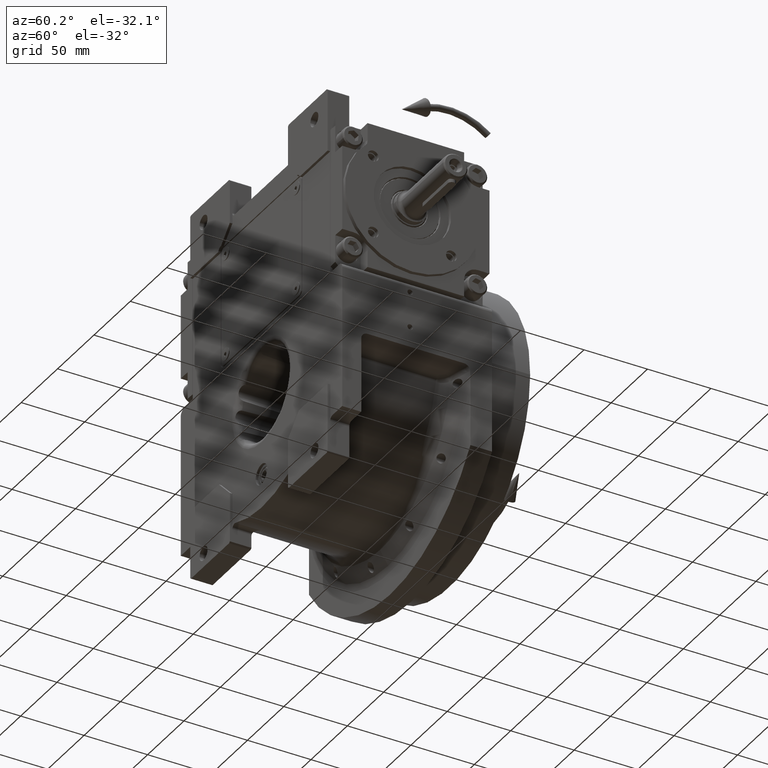
[diagram: clean part render]
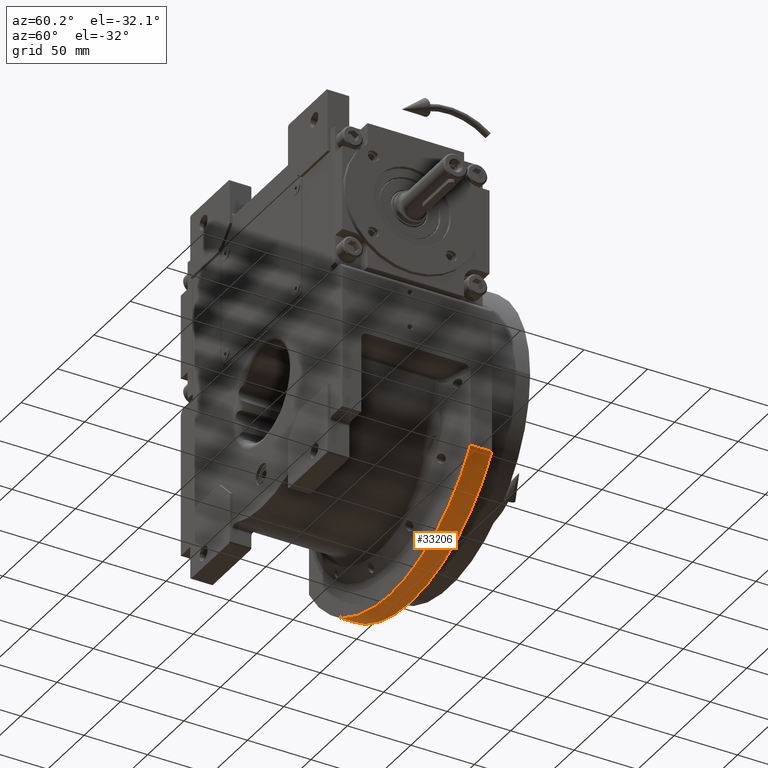
[diagram: same view with one face highlighted and labeled with its STEP entity id]
A machine part, auxiliary view. The second image highlights one B-rep face of the part: STEP entity #33206.
In plain terms, the highlighted cylindrical surface (partial cylindrical patch) has radius 132 mm, axis along (0, -1, 0).
Its self-contained STEP definition (entity closure, byte-faithful):
#9215 = CARTESIAN_POINT ( 'NONE',  ( -4.517455316885850268E-28, -53.50000000000000000, 0.000000000000000000 ) ) ;
#14266 = CIRCLE ( 'NONE', #15382, 131.9999999999999716 ) ;
#15077 = CARTESIAN_POINT ( 'NONE',  ( 111.0000000000000000, 47.50000000000000000, -71.43528539874399996 ) ) ;
#15132 = VERTEX_POINT ( 'NONE', #45926 ) ;
#15382 = AXIS2_PLACEMENT_3D ( 'NONE', #39515, #28255, #33889 ) ;
#21213 = ORIENTED_EDGE ( 'NONE', *, *, #28423, .F. ) ;
#23290 = EDGE_CURVE ( 'NONE', #62093, #15132, #54580, .T. ) ;
#24276 = EDGE_CURVE ( 'NONE', #51995, #61079, #14266, .T. ) ;
#28255 = DIRECTION ( 'NONE',  ( 0.000000000000000000, 1.000000000000000000, 0.000000000000000000 ) ) ;
#28423 = EDGE_CURVE ( 'NONE', #51995, #62093, #50982, .T. ) ;
#30988 = VECTOR ( 'NONE', #40893, 1000.000000000000000 ) ;
#33206 = ADVANCED_FACE ( 'NONE', ( #68952 ), #41906, .T. ) ;
#33889 = DIRECTION ( 'NONE',  ( 0.8409090909090902732, 0.000000000000000000, -0.5411764045359401809 ) ) ;
#39515 = CARTESIAN_POINT ( 'NONE',  ( 0.000000000000000000, 47.50000000000000000, 4.263256414560599853E-14 ) ) ;
#40623 = CARTESIAN_POINT ( 'NONE',  ( 111.0000000000000000, 47.50000000000000000, -71.43528539874399996 ) ) ;
#40893 = DIRECTION ( 'NONE',  ( 0.000000000000000000, 1.000000000000000000, 0.000000000000000000 ) ) ;
#41467 = DIRECTION ( 'NONE',  ( 0.000000000000000000, 1.000000000000000000, 8.359326303060000099E-16 ) ) ;
#41906 = CYLINDRICAL_SURFACE ( 'NONE', #68922, 132.0000000000000000 ) ;
#43915 = CARTESIAN_POINT ( 'NONE',  ( 7.105427357600998703E-15, 64.50000000000000000, 0.000000000000000000 ) ) ;
#44606 = DIRECTION ( 'NONE',  ( 0.8409090909090906063, 0.000000000000000000, -0.5411764045359397368 ) ) ;
#44929 = ORIENTED_EDGE ( 'NONE', *, *, #23290, .F. ) ;
#45926 = CARTESIAN_POINT ( 'NONE',  ( -111.0000000000000000, 64.50000000000000000, -71.43528539874399996 ) ) ;
#46770 = AXIS2_PLACEMENT_3D ( 'NONE', #43915, #60411, #44606 ) ;
#47901 = DIRECTION ( 'NONE',  ( 0.000000000000000000, -1.000000000000000000, 0.000000000000000000 ) ) ;
#50836 = CARTESIAN_POINT ( 'NONE',  ( 111.0000000000000000, 64.50000000000000000, -71.43528539874399996 ) ) ;
#50982 = LINE ( 'NONE', #15077, #51572 ) ;
#51572 = VECTOR ( 'NONE', #41467, 1000.000000000000000 ) ;
#51995 = VERTEX_POINT ( 'NONE', #40623 ) ;
#53580 = CARTESIAN_POINT ( 'NONE',  ( -111.0000000000000000, 47.50000000000000000, -71.43528539874399996 ) ) ;
#54580 = CIRCLE ( 'NONE', #46770, 132.0000000000000853 ) ;
#57498 = EDGE_CURVE ( 'NONE', #61079, #15132, #66548, .T. ) ;
#59418 = EDGE_LOOP ( 'NONE', ( #68696, #44929, #21213, #65398 ) ) ;
#60411 = DIRECTION ( 'NONE',  ( 0.000000000000000000, 1.000000000000000000, 0.000000000000000000 ) ) ;
#61079 = VERTEX_POINT ( 'NONE', #53580 ) ;
#61631 = CARTESIAN_POINT ( 'NONE',  ( -111.0000000000000000, 47.50000000000000000, -71.43528539874399996 ) ) ;
#62093 = VERTEX_POINT ( 'NONE', #50836 ) ;
#65398 = ORIENTED_EDGE ( 'NONE', *, *, #24276, .T. ) ;
#66548 = LINE ( 'NONE', #61631, #30988 ) ;
#67897 = DIRECTION ( 'NONE',  ( 1.000000000000000000, 0.000000000000000000, 0.000000000000000000 ) ) ;
#68696 = ORIENTED_EDGE ( 'NONE', *, *, #57498, .T. ) ;
#68922 = AXIS2_PLACEMENT_3D ( 'NONE', #9215, #47901, #67897 ) ;
#68952 = FACE_OUTER_BOUND ( 'NONE', #59418, .T. ) ;